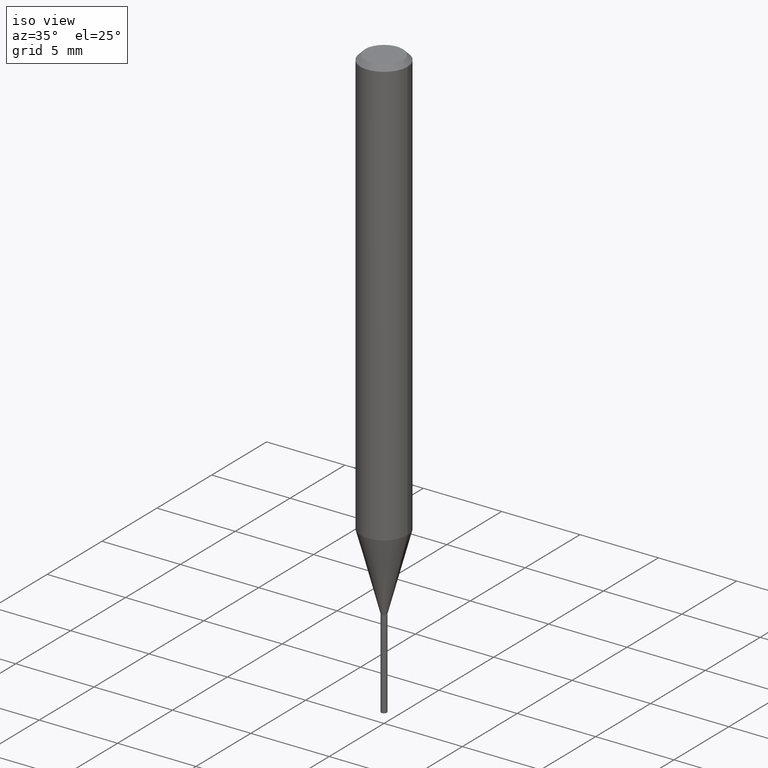
[diagram: clean part render]
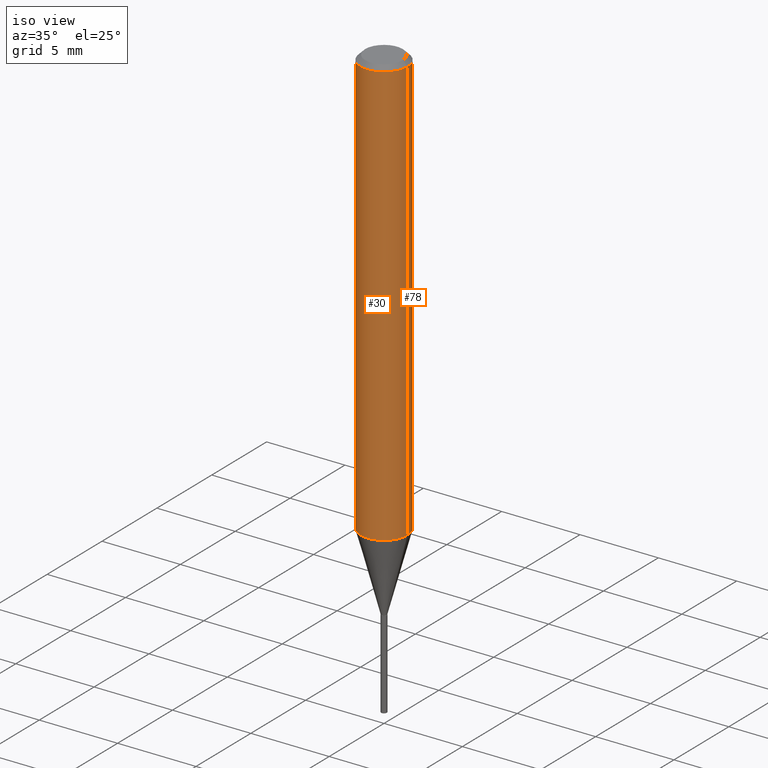
[diagram: same view with one multi-face feature highlighted, each face labeled with its STEP entity id]
A machine part, iso view. The highlighted faces form ONE feature: a constant-radius fillet chain: 2 tangent blend faces with common blend radius 1.4999 mm. The faces share edges in the B-rep.
Their STEP definitions:
[1] entity #78 (Cylinder):
#9 = DIRECTION ( 'NONE',  ( -2.445468806185136597E-29, 3.491481338843145583E-15, 1.000000000000000000 ) ) ;
#21 = VERTEX_POINT ( 'NONE', #59 ) ;
#50 = LINE ( 'NONE', #135, #335 ) ;
#59 = CARTESIAN_POINT ( 'NONE',  ( 0.05905000000000013710, -4.168200114187600418E-15, -1.075719960546796861 ) ) ;
#78 = ADVANCED_FACE ( 'NONE', ( #273 ), #421, .T. ) ;
#82 = CARTESIAN_POINT ( 'NONE',  ( -0.05905000000000013710, -3.336280682603885216E-15, -1.075719960546796861 ) ) ;
#99 = DIRECTION ( 'NONE',  ( -2.445468806185136877E-29, 3.491481338843145188E-15, 1.000000000000000000 ) ) ;
#101 = VECTOR ( 'NONE', #434, 39.37007874015748143 ) ;
#135 = CARTESIAN_POINT ( 'NONE',  ( 0.05905000000000006771, -4.123439461173745257E-16, 2.879382386107503723E-30 ) ) ;
#139 = EDGE_CURVE ( 'NONE', #357, #148, #299, .T. ) ;
#148 = VERTEX_POINT ( 'NONE', #227 ) ;
#163 = CARTESIAN_POINT ( 'NONE',  ( 0.000000000000000000, 0.000000000000000000, 0.000000000000000000 ) ) ;
#164 = EDGE_LOOP ( 'NONE', ( #283, #274, #195, #301 ) ) ;
#168 = DIRECTION ( 'NONE',  ( 1.000000000000000000, -6.982962677686265133E-15, 0.000000000000000000 ) ) ;
#182 = AXIS2_PLACEMENT_3D ( 'NONE', #163, #234, #338 ) ;
#195 = ORIENTED_EDGE ( 'NONE', *, *, #139, .F. ) ;
#211 = DIRECTION ( 'NONE',  ( -2.445468806185136597E-29, 3.491481338843145583E-15, 1.000000000000000000 ) ) ;
#221 = AXIS2_PLACEMENT_3D ( 'NONE', #319, #211, #363 ) ;
#227 = CARTESIAN_POINT ( 'NONE',  ( -0.05904999999999999832, -1.478969795874641529E-15, -0.01181000000000007044 ) ) ;
#234 = DIRECTION ( 'NONE',  ( -2.445468806185136597E-29, 3.491481338843145583E-15, 1.000000000000000000 ) ) ;
#273 = FACE_OUTER_BOUND ( 'NONE', #164, .T. ) ;
#274 = ORIENTED_EDGE ( 'NONE', *, *, #425, .T. ) ;
#283 = ORIENTED_EDGE ( 'NONE', *, *, #349, .T. ) ;
#299 = CIRCLE ( 'NONE', #221, 0.05904999999999999832 ) ;
#301 = ORIENTED_EDGE ( 'NONE', *, *, #443, .F. ) ;
#314 = VERTEX_POINT ( 'NONE', #82 ) ;
#318 = CARTESIAN_POINT ( 'NONE',  ( 2.630639607707897401E-29, -3.755856168070225498E-15, -1.075719960546796861 ) ) ;
#319 = CARTESIAN_POINT ( 'NONE',  ( 2.888098660104663766E-31, -4.123439461173779647E-17, -0.01181000000000007044 ) ) ;
#325 = CARTESIAN_POINT ( 'NONE',  ( -0.05905000000000006771, 4.195754854663396409E-16, -2.904631170795525045E-30 ) ) ;
#335 = VECTOR ( 'NONE', #99, 39.37007874015748143 ) ;
#338 = DIRECTION ( 'NONE',  ( 1.000000000000000000, -6.982962677686266711E-15, 4.876176775795936353E-29 ) ) ;
#349 = EDGE_CURVE ( 'NONE', #21, #314, #482, .T. ) ;
#357 = VERTEX_POINT ( 'NONE', #471 ) ;
#363 = DIRECTION ( 'NONE',  ( 1.000000000000000000, -6.982962677686266711E-15, 0.000000000000000000 ) ) ;
#395 = LINE ( 'NONE', #325, #101 ) ;
#421 = CYLINDRICAL_SURFACE ( 'NONE', #182, 0.05905000000000006771 ) ;
#425 = EDGE_CURVE ( 'NONE', #314, #148, #395, .T. ) ;
#434 = DIRECTION ( 'NONE',  ( -2.445468806185136877E-29, 3.491481338843145188E-15, 1.000000000000000000 ) ) ;
#443 = EDGE_CURVE ( 'NONE', #21, #357, #50, .T. ) ;
#457 = AXIS2_PLACEMENT_3D ( 'NONE', #318, #9, #168 ) ;
#471 = CARTESIAN_POINT ( 'NONE',  ( 0.05904999999999999832, -4.535783407291118600E-16, -0.01181000000000007044 ) ) ;
#482 = CIRCLE ( 'NONE', #457, 0.05905000000000013016 ) ;
[2] entity #30 (Cylinder):
#6 = DIRECTION ( 'NONE',  ( 1.000000000000000000, -6.982962677686266711E-15, 0.000000000000000000 ) ) ;
#8 = DIRECTION ( 'NONE',  ( -2.445468806185136597E-29, 3.491481338843145583E-15, 1.000000000000000000 ) ) ;
#21 = VERTEX_POINT ( 'NONE', #59 ) ;
#30 = ADVANCED_FACE ( 'NONE', ( #108 ), #442, .T. ) ;
#35 = EDGE_CURVE ( 'NONE', #314, #21, #280, .T. ) ;
#50 = LINE ( 'NONE', #135, #335 ) ;
#51 = ORIENTED_EDGE ( 'NONE', *, *, #425, .F. ) ;
#59 = CARTESIAN_POINT ( 'NONE',  ( 0.05905000000000013710, -4.168200114187600418E-15, -1.075719960546796861 ) ) ;
#82 = CARTESIAN_POINT ( 'NONE',  ( -0.05905000000000013710, -3.336280682603885216E-15, -1.075719960546796861 ) ) ;
#99 = DIRECTION ( 'NONE',  ( -2.445468806185136877E-29, 3.491481338843145188E-15, 1.000000000000000000 ) ) ;
#101 = VECTOR ( 'NONE', #434, 39.37007874015748143 ) ;
#108 = FACE_OUTER_BOUND ( 'NONE', #265, .T. ) ;
#121 = ORIENTED_EDGE ( 'NONE', *, *, #35, .T. ) ;
#129 = ORIENTED_EDGE ( 'NONE', *, *, #443, .T. ) ;
#135 = CARTESIAN_POINT ( 'NONE',  ( 0.05905000000000006771, -4.123439461173745257E-16, 2.879382386107503723E-30 ) ) ;
#148 = VERTEX_POINT ( 'NONE', #227 ) ;
#165 = DIRECTION ( 'NONE',  ( 1.000000000000000000, -6.982962677686265133E-15, 0.000000000000000000 ) ) ;
#170 = CARTESIAN_POINT ( 'NONE',  ( 2.888098660104663766E-31, -4.123439461173779647E-17, -0.01181000000000007044 ) ) ;
#200 = AXIS2_PLACEMENT_3D ( 'NONE', #240, #8, #475 ) ;
#205 = DIRECTION ( 'NONE',  ( -2.445468806185136597E-29, 3.491481338843145583E-15, 1.000000000000000000 ) ) ;
#219 = DIRECTION ( 'NONE',  ( -2.445468806185136597E-29, 3.491481338843145583E-15, 1.000000000000000000 ) ) ;
#227 = CARTESIAN_POINT ( 'NONE',  ( -0.05904999999999999832, -1.478969795874641529E-15, -0.01181000000000007044 ) ) ;
#240 = CARTESIAN_POINT ( 'NONE',  ( 0.000000000000000000, 0.000000000000000000, 0.000000000000000000 ) ) ;
#265 = EDGE_LOOP ( 'NONE', ( #51, #121, #129, #470 ) ) ;
#280 = CIRCLE ( 'NONE', #289, 0.05905000000000013016 ) ;
#289 = AXIS2_PLACEMENT_3D ( 'NONE', #307, #205, #165 ) ;
#307 = CARTESIAN_POINT ( 'NONE',  ( 2.630639607707897401E-29, -3.755856168070225498E-15, -1.075719960546796861 ) ) ;
#314 = VERTEX_POINT ( 'NONE', #82 ) ;
#325 = CARTESIAN_POINT ( 'NONE',  ( -0.05905000000000006771, 4.195754854663396409E-16, -2.904631170795525045E-30 ) ) ;
#335 = VECTOR ( 'NONE', #99, 39.37007874015748143 ) ;
#357 = VERTEX_POINT ( 'NONE', #471 ) ;
#392 = EDGE_CURVE ( 'NONE', #148, #357, #467, .T. ) ;
#395 = LINE ( 'NONE', #325, #101 ) ;
#425 = EDGE_CURVE ( 'NONE', #314, #148, #395, .T. ) ;
#434 = DIRECTION ( 'NONE',  ( -2.445468806185136877E-29, 3.491481338843145188E-15, 1.000000000000000000 ) ) ;
#442 = CYLINDRICAL_SURFACE ( 'NONE', #200, 0.05905000000000006771 ) ;
#443 = EDGE_CURVE ( 'NONE', #21, #357, #50, .T. ) ;
#467 = CIRCLE ( 'NONE', #474, 0.05904999999999999832 ) ;
#470 = ORIENTED_EDGE ( 'NONE', *, *, #392, .F. ) ;
#471 = CARTESIAN_POINT ( 'NONE',  ( 0.05904999999999999832, -4.535783407291118600E-16, -0.01181000000000007044 ) ) ;
#474 = AXIS2_PLACEMENT_3D ( 'NONE', #170, #219, #6 ) ;
#475 = DIRECTION ( 'NONE',  ( 1.000000000000000000, -6.982962677686266711E-15, 4.876176775795936353E-29 ) ) ;